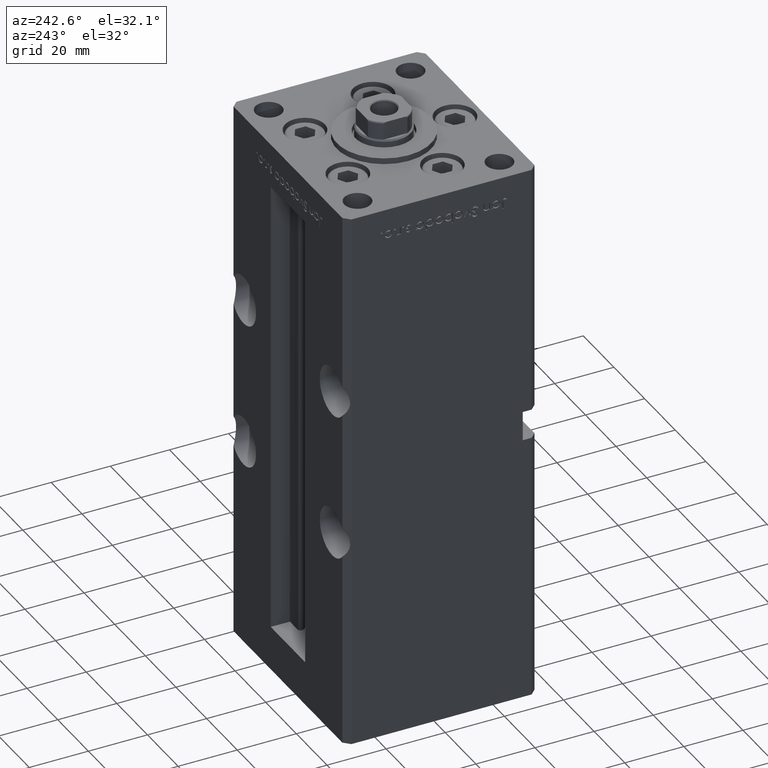
[diagram: clean part render]
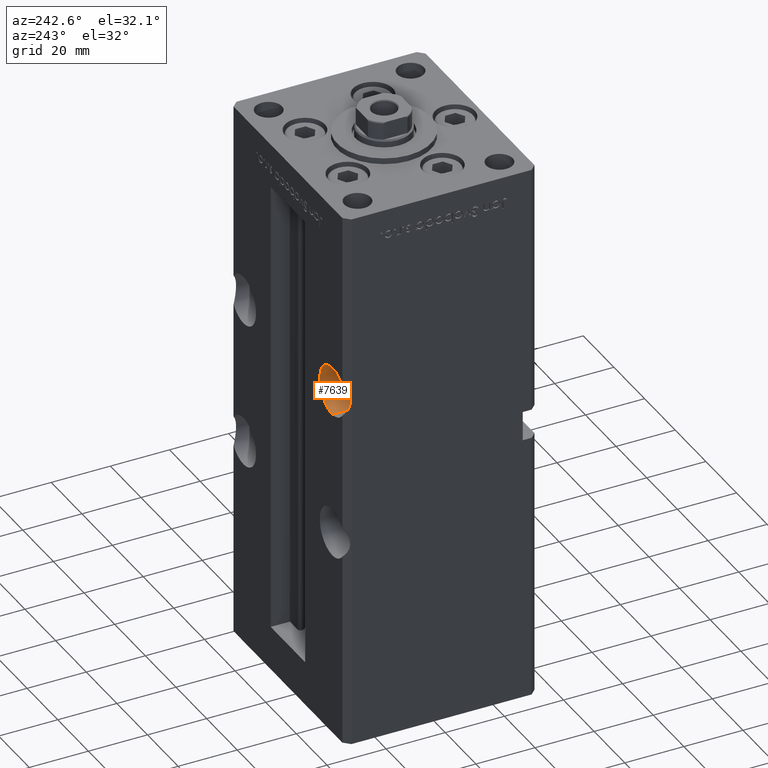
[diagram: same view with one face highlighted and labeled with its STEP entity id]
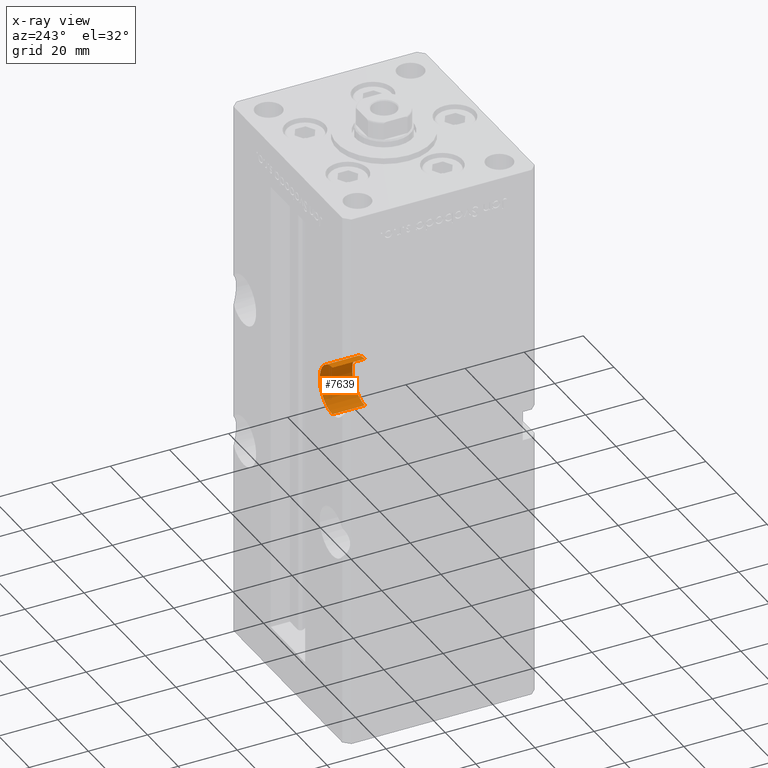
[diagram: x-ray of the same camera — body ghosted, the highlighted face saturated]
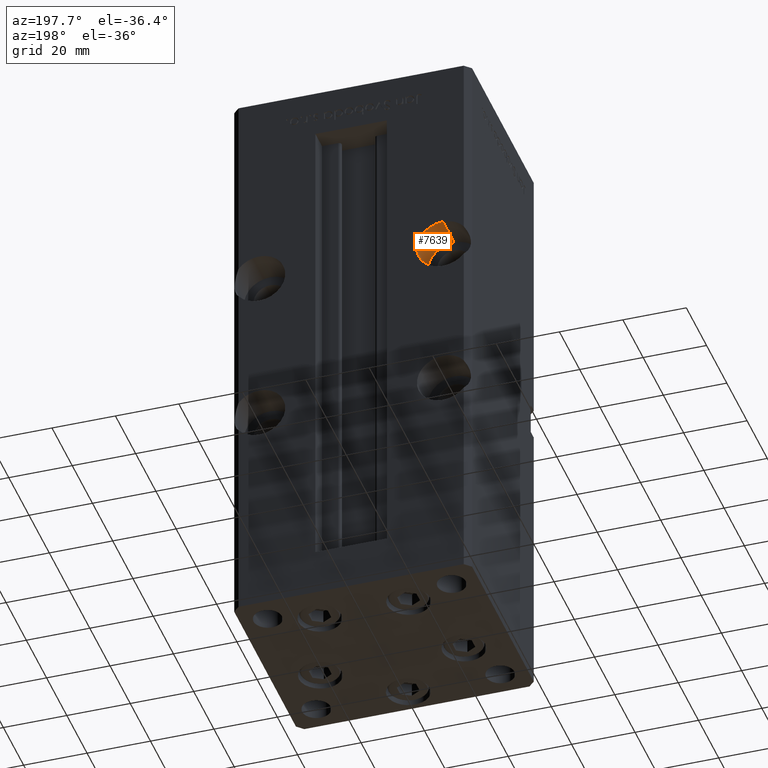
[diagram: same view with one face highlighted and labeled with its STEP entity id]
A machine part, auxiliary view. The second image highlights one B-rep face of the part: STEP entity #7639.
The next image is the same camera in x-ray: the body ghosted, the highlighted face saturated — about 0% of this face is hidden behind the body in this view.
A second angle (auxiliary view) of the same face is appended — the face is thin or edge-on in the first view.
In plain terms, the highlighted cylindrical surface (edge-blend (fillet) strip) has radius 8.25 mm, axis along (0, 1, 0).
Its self-contained STEP definition (entity closure, byte-faithful):
#627 = DIRECTION ( 'NONE',  ( 0.000000000000000000, 1.000000000000000000, -0.000000000000000000 ) ) ;
#1114 = FACE_OUTER_BOUND ( 'NONE', #35447, .T. ) ;
#1145 = VERTEX_POINT ( 'NONE', #24744 ) ;
#2830 = DIRECTION ( 'NONE',  ( -0.000000000000000000, 1.000000000000000000, -0.000000000000000000 ) ) ;
#3070 = AXIS2_PLACEMENT_3D ( 'NONE', #29873, #17503, #50588 ) ;
#3684 = VECTOR ( 'NONE', #2830, 1000.000000000000000 ) ;
#4007 = LINE ( 'NONE', #48915, #24780 ) ;
#4153 = DIRECTION ( 'NONE',  ( 0.000000000000000000, 0.000000000000000000, -1.000000000000000000 ) ) ;
#6864 = CIRCLE ( 'NONE', #11166, 8.250000000000007105 ) ;
#7639 = ADVANCED_FACE ( 'NONE', ( #1114 ), #41701, .F. ) ;
#8195 = CARTESIAN_POINT ( 'NONE',  ( -28.99999999999999645, 21.50000000000000000, 106.0000000000000142 ) ) ;
#10903 = ORIENTED_EDGE ( 'NONE', *, *, #15383, .F. ) ;
#11166 = AXIS2_PLACEMENT_3D ( 'NONE', #8195, #627, #4153 ) ;
#15383 = EDGE_CURVE ( 'NONE', #39337, #38649, #4007, .T. ) ;
#16052 = CARTESIAN_POINT ( 'NONE',  ( -28.99999999999999645, 21.50000000000000000, 97.75000000000000000 ) ) ;
#16745 = CARTESIAN_POINT ( 'NONE',  ( -28.99999999999999645, 32.50000000000000000, 97.75000000000000000 ) ) ;
#17503 = DIRECTION ( 'NONE',  ( -0.000000000000000000, 1.000000000000000000, -0.000000000000000000 ) ) ;
#19051 = DIRECTION ( 'NONE',  ( 0.000000000000000000, 1.000000000000000000, -0.000000000000000000 ) ) ;
#22155 = VERTEX_POINT ( 'NONE', #24767 ) ;
#23063 = EDGE_CURVE ( 'NONE', #22155, #39337, #6864, .T. ) ;
#24744 = CARTESIAN_POINT ( 'NONE',  ( -28.99999999999999645, 32.50000000000000000, 114.2500000000000142 ) ) ;
#24767 = CARTESIAN_POINT ( 'NONE',  ( -28.99999999999999645, 21.50000000000000000, 114.2500000000000142 ) ) ;
#24780 = VECTOR ( 'NONE', #49957, 1000.000000000000000 ) ;
#29857 = CIRCLE ( 'NONE', #41028, 8.250000000000007105 ) ;
#29873 = CARTESIAN_POINT ( 'NONE',  ( -28.99999999999999645, 21.50000000000000000, 106.0000000000000142 ) ) ;
#30703 = EDGE_CURVE ( 'NONE', #22155, #1145, #31325, .T. ) ;
#31325 = LINE ( 'NONE', #31578, #3684 ) ;
#31578 = CARTESIAN_POINT ( 'NONE',  ( -28.99999999999999645, 21.50000000000000000, 114.2500000000000142 ) ) ;
#35447 = EDGE_LOOP ( 'NONE', ( #10903, #37916, #38629, #45972 ) ) ;
#35474 = DIRECTION ( 'NONE',  ( 0.000000000000000000, 0.000000000000000000, -1.000000000000000000 ) ) ;
#37916 = ORIENTED_EDGE ( 'NONE', *, *, #23063, .F. ) ;
#38629 = ORIENTED_EDGE ( 'NONE', *, *, #30703, .T. ) ;
#38649 = VERTEX_POINT ( 'NONE', #16745 ) ;
#39337 = VERTEX_POINT ( 'NONE', #16052 ) ;
#39492 = CARTESIAN_POINT ( 'NONE',  ( -28.99999999999999645, 32.50000000000000000, 106.0000000000000142 ) ) ;
#41028 = AXIS2_PLACEMENT_3D ( 'NONE', #39492, #19051, #35474 ) ;
#41701 = CYLINDRICAL_SURFACE ( 'NONE', #3070, 8.250000000000007105 ) ;
#45435 = EDGE_CURVE ( 'NONE', #1145, #38649, #29857, .T. ) ;
#45972 = ORIENTED_EDGE ( 'NONE', *, *, #45435, .T. ) ;
#48915 = CARTESIAN_POINT ( 'NONE',  ( -28.99999999999999645, 21.50000000000000000, 97.75000000000000000 ) ) ;
#49957 = DIRECTION ( 'NONE',  ( -0.000000000000000000, 1.000000000000000000, -0.000000000000000000 ) ) ;
#50588 = DIRECTION ( 'NONE',  ( 0.000000000000000000, 0.000000000000000000, 1.000000000000000000 ) ) ;